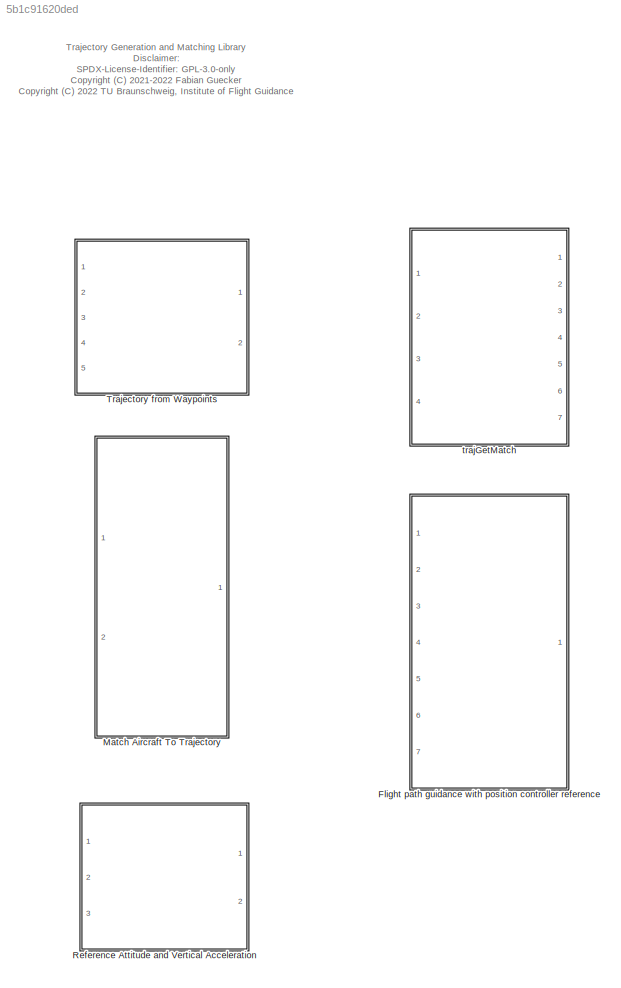
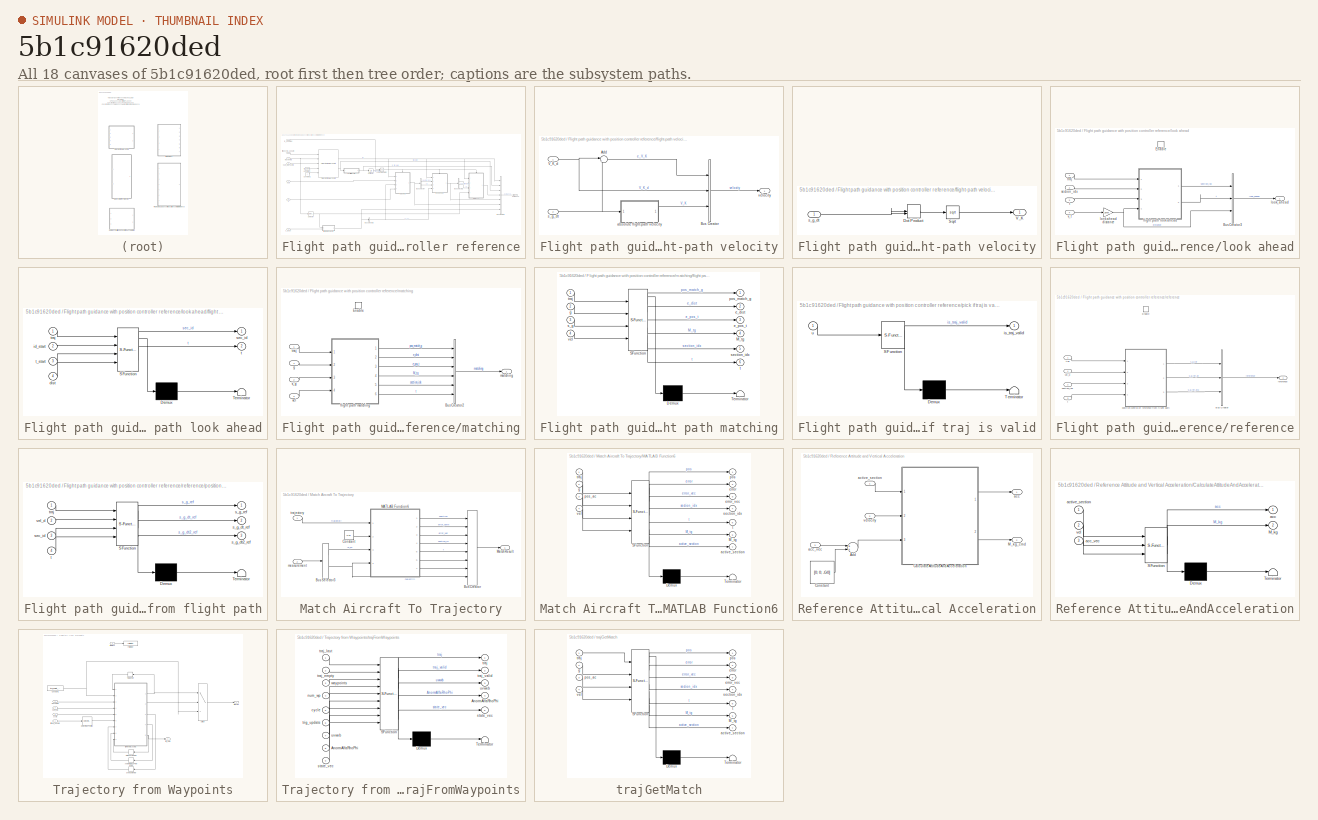
[diagram: thumbnail index - all 18 canvases of the model, root first then tree order]
MODEL slx_5b1c91620ded
KIND library
CONFIG AbsTol = auto
CONFIG EnableMultiTasking = off
CONFIG FixedStep = auto
CONFIG MaxStep = auto
CONFIG MinStep = auto
CONFIG RelTol = 1e-3
CONFIG SampleTimeConstraint = Unconstrained
CONFIG Solver = VariableStepAuto
CONFIG SolverName = VariableStepAuto
CONFIG StartTime = 0.0
CONFIG StopTime = 10.0
BLOCK [SubSystem] Flight path guidance with position controller reference
  Ports = [7, 1]
  RequestExecContextInheritance = off
BLOCK [BusCreator] Flight path guidance with position controller reference/Bus Creator1
  DisplayOption = bar
  InheritFromInputs = on
  Inputs = 7
  Ports = [7, 1]
BLOCK [BusSelector] Flight path guidance with position controller reference/Bus Selector
  OutputAsBus = off
  OutputSignals = section_idx,t
  Ports = [1, 2]
BLOCK [BusSelector] Flight path guidance with position controller reference/Bus Selector1
  OutputAsBus = off
  OutputSignals = section_idx,t
  Ports = [1, 2]
BLOCK [BusSelector] Flight path guidance with position controller reference/Bus Selector2
  OutputAsBus = off
  OutputSignals = V_K
  Ports = [1, 1]
BLOCK [Constant] Flight path guidance with position controller reference/Constant
  Value = traj_params.cycle
BLOCK [Constant] Flight path guidance with position controller reference/Constant1
BLOCK [Logic] Flight path guidance with position controller reference/Logical Operator
  AllPortsSameDT = off
  OutDataTypeStr = boolean
  Ports = [2, 1]
BLOCK [Selector] Flight path guidance with position controller reference/Selector
  IndexOptions = Index vector (dialog),Index vector (dialog)
  Indices = 4,1
  InputPortWidth = 3
  NumberOfDimensions = 2
  OutputSizes = 1,1
  Ports = [1, 1]
BLOCK [Reference] Flight path guidance with position controller reference/Trajectory from Waypoints  REF=$bdroot/Trajectory from Waypoints
  Ports = [5, 2]
  SourceBlock = $bdroot/Trajectory from Waypoints
BLOCK [UnitDelay] Flight path guidance with position controller reference/Unit Delay
  InputProcessing = Elements as channels (sample based)
  SampleTime = -1
BLOCK [SubSystem] Flight path guidance with position controller reference/flight-path velocity
  Ports = [2, 1]
  RequestExecContextInheritance = off
BLOCK [Sum] Flight path guidance with position controller reference/flight-path velocity/Add
  IconShape = round
  InputSameDT = off
  Inputs = |+-
  OutDataTypeStr = Inherit: Inherit via internal rule
  Ports = [2, 1]
  SaturateOnIntegerOverflow = off
BLOCK [BusCreator] Flight path guidance with position controller reference/flight-path velocity/Bus Creator
  DisplayOption = bar
  InheritFromInputs = on
  Inputs = 3
  Ports = [3, 1]
BLOCK [Inport] Flight path guidance with position controller reference/flight-path velocity/V_K_d
  IconDisplay = Port number
BLOCK [SubSystem] Flight path guidance with position controller reference/flight-path velocity/absolute flight-path velocity
  Ports = [1, 1]
  RequestExecContextInheritance = off
BLOCK [DotProduct] Flight path guidance with position controller reference/flight-path velocity/absolute flight-path velocity/Dot Product
  OutDataTypeStr = Inherit: Inherit via internal rule
BLOCK [Sqrt] Flight path guidance with position controller reference/flight-path velocity/absolute flight-path velocity/Sqrt
BLOCK [Outport] Flight path guidance with position controller reference/flight-path velocity/absolute flight-path velocity/V_K
  IconDisplay = Port number
BLOCK [Inport] Flight path guidance with position controller reference/flight-path velocity/absolute flight-path velocity/s_g_dt
  IconDisplay = Port number
BLOCK [Inport] Flight path guidance with position controller reference/flight-path velocity/s_g_dt
  IconDisplay = Port number
  Port = 2
BLOCK [Outport] Flight path guidance with position controller reference/flight-path velocity/velocity
  IconDisplay = Port number
BLOCK [Inport] Flight path guidance with position controller reference/g
  IconDisplay = Port number
  Port = 6
BLOCK [Outport] Flight path guidance with position controller reference/guidance
  IconDisplay = Port number
BLOCK [Inport] Flight path guidance with position controller reference/is_enabled
  IconDisplay = Port number
  Port = 7
BLOCK [SubSystem] Flight path guidance with position controller reference/look ahead
  Ports = [4, 1, 1]
  RequestExecContextInheritance = off
BLOCK [BusCreator] Flight path guidance with position controller reference/look ahead/Bus Creator3
  DisplayOption = bar
  InheritFromInputs = on
  Inputs = 3
  Ports = [3, 1]
BLOCK [EnablePort] Flight path guidance with position controller reference/look ahead/Enable
  Ports = []
BLOCK [SubSystem] Flight path guidance with position controller reference/look ahead/flight path look ahead
  ErrorFcn = Stateflow.Translate.translate
  PermitHierarchicalResolution = ExplicitOnly
  Ports = [4, 2]
  RequestExecContextInheritance = off
  SFBlockType = MATLAB Function
  TreatAsAtomicUnit = on
BLOCK [Demux] Flight path guidance with position controller reference/look ahead/flight path look ahead/ Demux 
  Outputs = 1
  Ports = [1, 1]
BLOCK [S-Function] Flight path guidance with position controller reference/look ahead/flight path look ahead/ SFunction 
  EnableBusSupport = off
  FunctionName = sf_sfun
  PortCounts = [4 3]
  Ports = [4, 3]
  SFcnIsStateOwnerBlock = off
  SFunctionDeploymentMode = off
  Tag = Stateflow S-Function traj_lib 7
BLOCK [Terminator] Flight path guidance with position controller reference/look ahead/flight path look ahead/ Terminator 
BLOCK [Inport] Flight path guidance with position controller reference/look ahead/flight path look ahead/dist
  IconDisplay = Port number
  Port = 4
BLOCK [Inport] Flight path guidance with position controller reference/look ahead/flight path look ahead/id_start
  IconDisplay = Port number
  Port = 2
BLOCK [Outport] Flight path guidance with position controller reference/look ahead/flight path look ahead/sec_id
  IconDisplay = Port number
BLOCK [Outport] Flight path guidance with position controller reference/look ahead/flight path look ahead/t
  IconDisplay = Port number
  Port = 2
BLOCK [Inport] Flight path guidance with position controller reference/look ahead/flight path look ahead/t_start
  IconDisplay = Port number
  Port = 3
BLOCK [Inport] Flight path guidance with position controller reference/look ahead/flight path look ahead/traj
  IconDisplay = Port number
BLOCK [Gain] Flight path guidance with position controller reference/look ahead/look ahead distance
  Gain = T_inner_loop
  OutDataTypeStr = Inherit: Inherit via internal rule
  ParamDataTypeStr = Inherit: Inherit via internal rule
  SaturateOnIntegerOverflow = off
BLOCK [Outport] Flight path guidance with position controller reference/look ahead/look_ahead
  IconDisplay = Port number
BLOCK [Inport] Flight path guidance with position controller reference/look ahead/section_idx
  IconDisplay = Port number
  Port = 2
BLOCK [Inport] Flight path guidance with position controller reference/look ahead/t
  IconDisplay = Port number
  Port = 3
BLOCK [Inport] Flight path guidance with position controller reference/look ahead/traj
  IconDisplay = Port number
BLOCK [Inport] Flight path guidance with position controller reference/look ahead/v_t
  IconDisplay = Port number
  Port = 4
BLOCK [SubSystem] Flight path guidance with position controller reference/matching
  Ports = [4, 1, 1]
  RequestExecContextInheritance = off
BLOCK [BusCreator] Flight path guidance with position controller reference/matching/Bus Creator2
  DisplayOption = bar
  InheritFromInputs = on
  Inputs = 6
  Ports = [6, 1]
BLOCK [EnablePort] Flight path guidance with position controller reference/matching/Enable
  Ports = []
BLOCK [SubSystem] Flight path guidance with position controller reference/matching/flight path matching
  ErrorFcn = Stateflow.Translate.translate
  PermitHierarchicalResolution = ExplicitOnly
  Ports = [4, 6]
  RequestExecContextInheritance = off
  SFBlockType = MATLAB Function
  TreatAsAtomicUnit = on
BLOCK [Demux] Flight path guidance with position controller reference/matching/flight path matching/ Demux 
  Outputs = 1
  Ports = [1, 1]
BLOCK [S-Function] Flight path guidance with position controller reference/matching/flight path matching/ SFunction 
  EnableBusSupport = off
  FunctionName = sf_sfun
  PortCounts = [4 7]
  Ports = [4, 7]
  SFcnIsStateOwnerBlock = off
  SFunctionDeploymentMode = off
  Tag = Stateflow S-Function traj_lib 4
BLOCK [Terminator] Flight path guidance with position controller reference/matching/flight path matching/ Terminator 
BLOCK [Outport] Flight path guidance with position controller reference/matching/flight path matching/M_tg
  IconDisplay = Port number
  Port = 4
BLOCK [Outport] Flight path guidance with position controller reference/matching/flight path matching/e_dist
  IconDisplay = Port number
  Port = 2
BLOCK [Outport] Flight path guidance with position controller reference/matching/flight path matching/e_pos_t
  IconDisplay = Port number
  Port = 3
BLOCK [Inport] Flight path guidance with position controller reference/matching/flight path matching/g
  IconDisplay = Port number
  Port = 2
BLOCK [Outport] Flight path guidance with position controller reference/matching/flight path matching/pos_match_g
  IconDisplay = Port number
BLOCK [Inport] Flight path guidance with position controller reference/matching/flight path matching/s_g
  IconDisplay = Port number
  Port = 3
BLOCK [Outport] Flight path guidance with position controller reference/matching/flight path matching/section_idx
  IconDisplay = Port number
  Port = 5
BLOCK [Outport] Flight path guidance with position controller reference/matching/flight path matching/t
  IconDisplay = Port number
  Port = 6
BLOCK [Inport] Flight path guidance with position controller reference/matching/flight path matching/traj
  IconDisplay = Port number
BLOCK [Inport] Flight path guidance with position controller reference/matching/flight path matching/vel
  IconDisplay = Port number
  Port = 4
BLOCK [Inport] Flight path guidance with position controller reference/matching/g
  IconDisplay = Port number
  Port = 4
BLOCK [Outport] Flight path guidance with position controller reference/matching/matching
  IconDisplay = Port number
BLOCK [Inport] Flight path guidance with position controller reference/matching/s_g
  IconDisplay = Port number
  Port = 2
BLOCK [Inport] Flight path guidance with position controller reference/matching/traj
  IconDisplay = Port number
BLOCK [Inport] Flight path guidance with position controller reference/matching/vel
  IconDisplay = Port number
  Port = 3
BLOCK [Inport] Flight path guidance with position controller reference/num_waypoints
  IconDisplay = Port number
  Port = 2
BLOCK [SubSystem] Flight path guidance with position controller reference/pick if traj is valid
  ErrorFcn = Stateflow.Translate.translate
  PermitHierarchicalResolution = ExplicitOnly
  Ports = [1, 1]
  RequestExecContextInheritance = off
  SFBlockType = MATLAB Function
  TreatAsAtomicUnit = on
BLOCK [Demux] Flight path guidance with position controller reference/pick if traj is valid/ Demux 
  Outputs = 1
  Ports = [1, 1]
BLOCK [S-Function] Flight path guidance with position controller reference/pick if traj is valid/ SFunction 
  EnableBusSupport = off
  FunctionName = sf_sfun
  PortCounts = [1 2]
  Ports = [1, 2]
  SFcnIsStateOwnerBlock = off
  SFunctionDeploymentMode = off
  Tag = Stateflow S-Function traj_lib 3
BLOCK [Terminator] Flight path guidance with position controller reference/pick if traj is valid/ Terminator 
BLOCK [Outport] Flight path guidance with position controller reference/pick if traj is valid/is_traj_valid
  IconDisplay = Port number
BLOCK [Inport] Flight path guidance with position controller reference/pick if traj is valid/u
  IconDisplay = Port number
BLOCK [SubSystem] Flight path guidance with position controller reference/reference
  Ports = [4, 1, 1]
  RequestExecContextInheritance = off
BLOCK [BusCreator] Flight path guidance with position controller reference/reference/Bus Creator
  DisplayOption = bar
  InheritFromInputs = on
  Inputs = 3
  Ports = [3, 1]
BLOCK [EnablePort] Flight path guidance with position controller reference/reference/Enable
  Ports = []
BLOCK [SubSystem] Flight path guidance with position controller reference/reference/position controller reference from flight path
  ErrorFcn = Stateflow.Translate.translate
  PermitHierarchicalResolution = ExplicitOnly
  Ports = [4, 3]
  RequestExecContextInheritance = off
  SFBlockType = MATLAB Function
  TreatAsAtomicUnit = on
BLOCK [Demux] Flight path guidance with position controller reference/reference/position controller reference from flight path/ Demux 
  Outputs = 1
  Ports = [1, 1]
BLOCK [S-Function] Flight path guidance with position controller reference/reference/position controller reference from flight path/ SFunction 
  EnableBusSupport = off
  FunctionName = sf_sfun
  PortCounts = [4 4]
  Ports = [4, 4]
  SFcnIsStateOwnerBlock = off
  SFunctionDeploymentMode = off
  Tag = Stateflow S-Function traj_lib 5
BLOCK [Terminator] Flight path guidance with position controller reference/reference/position controller reference from flight path/ Terminator 
BLOCK [Outport] Flight path guidance with position controller reference/reference/position controller reference from flight path/s_g_dt2_ref
  IconDisplay = Port number
  Port = 3
BLOCK [Outport] Flight path guidance with position controller reference/reference/position controller reference from flight path/s_g_dt_ref
  IconDisplay = Port number
  Port = 2
BLOCK [Outport] Flight path guidance with position controller reference/reference/position controller reference from flight path/s_g_ref
  IconDisplay = Port number
BLOCK [Inport] Flight path guidance with position controller reference/reference/position controller reference from flight path/sec_id
  IconDisplay = Port number
  Port = 3
BLOCK [Inport] Flight path guidance with position controller reference/reference/position controller reference from flight path/t
  IconDisplay = Port number
  Port = 4
BLOCK [Inport] Flight path guidance with position controller reference/reference/position controller reference from flight path/traj
  IconDisplay = Port number
BLOCK [Inport] Flight path guidance with position controller reference/reference/position controller reference from flight path/vel_d
  IconDisplay = Port number
  Port = 2
BLOCK [Outport] Flight path guidance with position controller reference/reference/reference
  IconDisplay = Port number
BLOCK [Inport] Flight path guidance with position controller reference/reference/section_idx
  IconDisplay = Port number
  Port = 2
BLOCK [Inport] Flight path guidance with position controller reference/reference/t
  IconDisplay = Port number
  Port = 3
BLOCK [Inport] Flight path guidance with position controller reference/reference/traj
  IconDisplay = Port number
BLOCK [Inport] Flight path guidance with position controller reference/reference/vel_d
  IconDisplay = Port number
  Port = 4
BLOCK [Inport] Flight path guidance with position controller reference/s_g
  IconDisplay = Port number
  Port = 4
BLOCK [Inport] Flight path guidance with position controller reference/s_g_dt
  IconDisplay = Port number
  Port = 5
BLOCK [Inport] Flight path guidance with position controller reference/trigger_wp_update
  IconDisplay = Port number
  Port = 3
BLOCK [Inport] Flight path guidance with position controller reference/waypoints
  IconDisplay = Port number
BLOCK [SubSystem] Match Aircraft To Trajectory
  Ports = [2, 1]
  RequestExecContextInheritance = off
BLOCK [BusCreator] Match Aircraft To Trajectory/Bus Creator
  DisplayOption = bar
  InheritFromInputs = on
  Inputs = 8
  Ports = [8, 1]
BLOCK [BusSelector] Match Aircraft To Trajectory/Bus Selector3
  OutputAsBus = off
  OutputSignals = EKF.s_g,EKF.velocity
  Ports = [1, 2]
BLOCK [Constant] Match Aircraft To Trajectory/Constant
  Value = 9.81
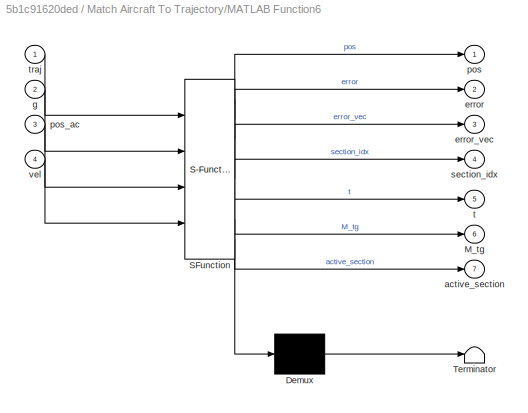
BLOCK [SubSystem] Match Aircraft To Trajectory/MATLAB Function6
  ErrorFcn = Stateflow.Translate.translate
  PermitHierarchicalResolution = ExplicitOnly
  Ports = [4, 7]
  RequestExecContextInheritance = off
  SFBlockType = MATLAB Function
  TreatAsAtomicUnit = on
BLOCK [Demux] Match Aircraft To Trajectory/MATLAB Function6/ Demux 
  Outputs = 1
  Ports = [1, 1]
BLOCK [S-Function] Match Aircraft To Trajectory/MATLAB Function6/ SFunction 
  EnableBusSupport = on
  FunctionName = sf_sfun
  PortCounts = [4 8]
  Ports = [4, 8]
  SFcnIsStateOwnerBlock = off
  SFunctionDeploymentMode = off
  Tag = Stateflow S-Function traj_lib 2
BLOCK [Terminator] Match Aircraft To Trajectory/MATLAB Function6/ Terminator 
BLOCK [Outport] Match Aircraft To Trajectory/MATLAB Function6/M_tg
  IconDisplay = Port number
  Port = 6
BLOCK [Outport] Match Aircraft To Trajectory/MATLAB Function6/active_section
  IconDisplay = Port number
  Port = 7
BLOCK [Outport] Match Aircraft To Trajectory/MATLAB Function6/error
  IconDisplay = Port number
  Port = 2
BLOCK [Outport] Match Aircraft To Trajectory/MATLAB Function6/error_vec
  IconDisplay = Port number
  Port = 3
BLOCK [Inport] Match Aircraft To Trajectory/MATLAB Function6/g
  IconDisplay = Port number
  Port = 2
BLOCK [Outport] Match Aircraft To Trajectory/MATLAB Function6/pos
  IconDisplay = Port number
BLOCK [Inport] Match Aircraft To Trajectory/MATLAB Function6/pos_ac
  IconDisplay = Port number
  Port = 3
BLOCK [Outport] Match Aircraft To Trajectory/MATLAB Function6/section_idx
  IconDisplay = Port number
  Port = 4
BLOCK [Outport] Match Aircraft To Trajectory/MATLAB Function6/t
  IconDisplay = Port number
  Port = 5
BLOCK [Inport] Match Aircraft To Trajectory/MATLAB Function6/traj
  IconDisplay = Port number
BLOCK [Inport] Match Aircraft To Trajectory/MATLAB Function6/vel
  IconDisplay = Port number
  Port = 4
BLOCK [Outport] Match Aircraft To Trajectory/MatchResult
  IconDisplay = Port number
BLOCK [Inport] Match Aircraft To Trajectory/measurement
  IconDisplay = Port number
  Port = 2
BLOCK [Inport] Match Aircraft To Trajectory/trajectory
  IconDisplay = Port number
BLOCK [SubSystem] Reference Attitude and Vertical Acceleration
  Ports = [3, 2]
  RequestExecContextInheritance = off
BLOCK [Sum] Reference Attitude and Vertical Acceleration/Add
  InputSameDT = off
  OutDataTypeStr = Inherit: Inherit via internal rule
  Ports = [2, 1]
  SaturateOnIntegerOverflow = off
BLOCK [SubSystem] Reference Attitude and Vertical Acceleration/CalculateAttitudeAndAcceleration
  ErrorFcn = Stateflow.Translate.translate
  PermitHierarchicalResolution = ExplicitOnly
  Ports = [3, 2]
  RequestExecContextInheritance = off
  SFBlockType = MATLAB Function
  TreatAsAtomicUnit = on
BLOCK [Demux] Reference Attitude and Vertical Acceleration/CalculateAttitudeAndAcceleration/ Demux 
  Outputs = 1
  Ports = [1, 1]
BLOCK [S-Function] Reference Attitude and Vertical Acceleration/CalculateAttitudeAndAcceleration/ SFunction 
  EnableBusSupport = on
  FunctionName = sf_sfun
  PortCounts = [3 3]
  Ports = [3, 3]
  SFcnIsStateOwnerBlock = off
  SFunctionDeploymentMode = off
  Tag = Stateflow S-Function traj_lib 9
BLOCK [Terminator] Reference Attitude and Vertical Acceleration/CalculateAttitudeAndAcceleration/ Terminator 
BLOCK [Outport] Reference Attitude and Vertical Acceleration/CalculateAttitudeAndAcceleration/M_kg
  IconDisplay = Port number
  Port = 2
BLOCK [Outport] Reference Attitude and Vertical Acceleration/CalculateAttitudeAndAcceleration/acc
  IconDisplay = Port number
BLOCK [Inport] Reference Attitude and Vertical Acceleration/CalculateAttitudeAndAcceleration/acc_vec
  IconDisplay = Port number
  Port = 3
BLOCK [Inport] Reference Attitude and Vertical Acceleration/CalculateAttitudeAndAcceleration/active_section
  IconDisplay = Port number
BLOCK [Inport] Reference Attitude and Vertical Acceleration/CalculateAttitudeAndAcceleration/vel
  IconDisplay = Port number
  Port = 2
BLOCK [Constant] Reference Attitude and Vertical Acceleration/Constant
  Value = [0; 0; -G0]
  VectorParams1D = off
BLOCK [Outport] Reference Attitude and Vertical Acceleration/M_kg_cmd
  IconDisplay = Port number
  Port = 2
BLOCK [Outport] Reference Attitude and Vertical Acceleration/acc
  IconDisplay = Port number
BLOCK [Inport] Reference Attitude and Vertical Acceleration/acc_vec
  IconDisplay = Port number
  Port = 3
BLOCK [Inport] Reference Attitude and Vertical Acceleration/active_section
  IconDisplay = Port number
BLOCK [Inport] Reference Attitude and Vertical Acceleration/velocity
  IconDisplay = Port number
  Port = 2
BLOCK [SubSystem] Trajectory from Waypoints
  Ports = [5, 2]
  RequestExecContextInheritance = off
BLOCK [Memory] Trajectory from Waypoints/AnormAlfaRhoPhiMemory
  InheritSampleTime = on
  InitialCondition = zeros(4,1)
BLOCK [Constant] Trajectory from Waypoints/Constant1
  OutDataTypeStr = Bus: trajectoryStructBus
  Value = traj_empty_struct
BLOCK [Reference] Trajectory from Waypoints/Detect Rise Positive  REF=simulink/Logic and Bit
Operations/Detect Rise
Positive
  Ports = [1, 1]
  SourceBlock = simulink/Logic and Bit\nOperations/Detect Rise\nPositive
  SourceProductBaseCode = SL
  SourceProductName = Simulink
  SourceType = Detect Rise Positive
BLOCK [ForIterator] Trajectory from Waypoints/For Iterator
  IterationLimit = 100
  IterationSource = external
  Ports = [1]
  ShowIterationPort = off
BLOCK [Inport] Trajectory from Waypoints/Iterations
  IconDisplay = Port number
  OutMax = [100]
  OutMin = [1]
  Port = 5
  PortDimensions = 1
BLOCK [Memory] Trajectory from Waypoints/StateVecMemory 
  InheritSampleTime = on
  InitialCondition = zeros(6,1)
BLOCK [Switch] Trajectory from Waypoints/Switch
  InputSameDT = off
  SaturateOnIntegerOverflow = off
  Threshold = 1
BLOCK [Memory] Trajectory from Waypoints/TrajMemory
  InheritSampleTime = on
  InitialCondition = traj_empty_struct
BLOCK [Inport] Trajectory from Waypoints/cycle
  IconDisplay = Port number
  Port = 4
BLOCK [Inport] Trajectory from Waypoints/num_wp
  IconDisplay = Port number
  Port = 3
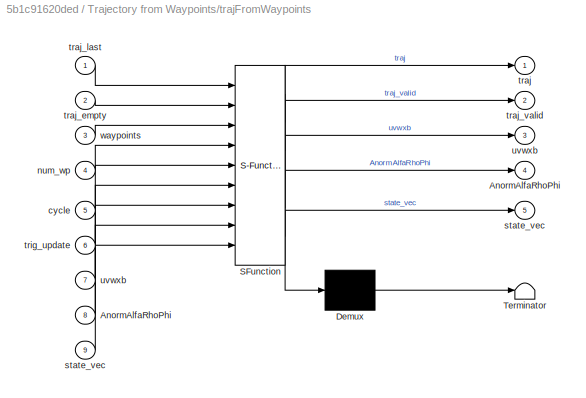
BLOCK [SubSystem] Trajectory from Waypoints/trajFromWaypoints
  ErrorFcn = Stateflow.Translate.translate
  PermitHierarchicalResolution = ExplicitOnly
  Ports = [9, 5]
  RequestExecContextInheritance = off
  SFBlockType = MATLAB Function
  TreatAsAtomicUnit = on
BLOCK [Demux] Trajectory from Waypoints/trajFromWaypoints/ Demux 
  Outputs = 1
  Ports = [1, 1]
BLOCK [S-Function] Trajectory from Waypoints/trajFromWaypoints/ SFunction 
  EnableBusSupport = on
  FunctionName = sf_sfun
  Parameters = traj_empty_struct
  PortCounts = [9 6]
  Ports = [9, 6]
  SFcnIsStateOwnerBlock = off
  SFunctionDeploymentMode = off
  Tag = Stateflow S-Function traj_lib 26
BLOCK [Terminator] Trajectory from Waypoints/trajFromWaypoints/ Terminator 
BLOCK [Outport] Trajectory from Waypoints/trajFromWaypoints/AnormAlfaRhoPhi
  IconDisplay = Port number
  Port = 4
BLOCK [Inport] Trajectory from Waypoints/trajFromWaypoints/AnormAlfaRhoPhi 
  IconDisplay = Port number
  Port = 8
BLOCK [Inport] Trajectory from Waypoints/trajFromWaypoints/cycle
  IconDisplay = Port number
  Port = 5
BLOCK [Inport] Trajectory from Waypoints/trajFromWaypoints/num_wp
  IconDisplay = Port number
  Port = 4
BLOCK [Outport] Trajectory from Waypoints/trajFromWaypoints/state_vec
  IconDisplay = Port number
  Port = 5
BLOCK [Inport] Trajectory from Waypoints/trajFromWaypoints/state_vec 
  IconDisplay = Port number
  Port = 9
BLOCK [Outport] Trajectory from Waypoints/trajFromWaypoints/traj
  IconDisplay = Port number
BLOCK [Inport] Trajectory from Waypoints/trajFromWaypoints/traj_empty
  IconDisplay = Port number
  Port = 2
BLOCK [Inport] Trajectory from Waypoints/trajFromWaypoints/traj_last
  IconDisplay = Port number
BLOCK [Outport] Trajectory from Waypoints/trajFromWaypoints/traj_valid
  IconDisplay = Port number
  Port = 2
BLOCK [Inport] Trajectory from Waypoints/trajFromWaypoints/trig_update
  IconDisplay = Port number
  Port = 6
BLOCK [Outport] Trajectory from Waypoints/trajFromWaypoints/uvwxb
  IconDisplay = Port number
  Port = 3
BLOCK [Inport] Trajectory from Waypoints/trajFromWaypoints/uvwxb 
  IconDisplay = Port number
  Port = 7
BLOCK [Inport] Trajectory from Waypoints/trajFromWaypoints/waypoints
  IconDisplay = Port number
  Port = 3
BLOCK [Outport] Trajectory from Waypoints/traj_state
  IconDisplay = Port number
  Port = 2
BLOCK [Outport] Trajectory from Waypoints/trajectory
  IconDisplay = Port number
BLOCK [Inport] Trajectory from Waypoints/trigger_update
  IconDisplay = Port number
BLOCK [Memory] Trajectory from Waypoints/uvwxbMemory
  InheritSampleTime = on
  InitialCondition = zeros(traj_parameter.wpmax*(traj_parameter.degree+1),5)
BLOCK [Inport] Trajectory from Waypoints/waypoints
  IconDisplay = Port number
  Port = 2
BLOCK [SubSystem] trajGetMatch
  ErrorFcn = Stateflow.Translate.translate
  PermitHierarchicalResolution = ExplicitOnly
  Ports = [4, 7]
  RequestExecContextInheritance = off
  SFBlockType = MATLAB Function
  TreatAsAtomicUnit = on
BLOCK [Demux] trajGetMatch/ Demux 
  Outputs = 1
  Ports = [1, 1]
BLOCK [S-Function] trajGetMatch/ SFunction 
  EnableBusSupport = off
  FunctionName = sf_sfun
  PortCounts = [4 8]
  Ports = [4, 8]
  SFcnIsStateOwnerBlock = off
  SFunctionDeploymentMode = off
  Tag = Stateflow S-Function traj_lib 1
BLOCK [Terminator] trajGetMatch/ Terminator 
BLOCK [Outport] trajGetMatch/M_tg
  IconDisplay = Port number
  Port = 6
BLOCK [Outport] trajGetMatch/active_section
  IconDisplay = Port number
  Port = 7
BLOCK [Outport] trajGetMatch/error
  IconDisplay = Port number
  Port = 2
BLOCK [Outport] trajGetMatch/error_vec
  IconDisplay = Port number
  Port = 3
BLOCK [Inport] trajGetMatch/g
  IconDisplay = Port number
  Port = 2
BLOCK [Outport] trajGetMatch/pos
  IconDisplay = Port number
BLOCK [Inport] trajGetMatch/pos_ac
  IconDisplay = Port number
  Port = 3
BLOCK [Outport] trajGetMatch/section_idx
  IconDisplay = Port number
  Port = 4
BLOCK [Outport] trajGetMatch/t
  IconDisplay = Port number
  Port = 5
BLOCK [Inport] trajGetMatch/traj
  IconDisplay = Port number
BLOCK [Inport] trajGetMatch/vel
  IconDisplay = Port number
  Port = 4
ANNOTATION (root): Trajectory Generation and Matching Library Disclaimer: SPDX-License-Identifier: GPL-3.0-only <copyright redacted>
LINE Match Aircraft To Trajectory/Bus Creator:1 -> Match Aircraft To Trajectory/MatchResult:1
LINE Match Aircraft To Trajectory/Bus Selector3:1 -> Match Aircraft To Trajectory/MATLAB Function6:3
NET Match Aircraft To Trajectory/Bus Selector3:2 -> Match Aircraft To Trajectory/Bus Creator:8, Match Aircraft To Trajectory/MATLAB Function6:4
LINE Match Aircraft To Trajectory/Constant:1 -> Match Aircraft To Trajectory/MATLAB Function6:2
LINE Match Aircraft To Trajectory/MATLAB Function6:1 -> Match Aircraft To Trajectory/Bus Creator:1
LINE Match Aircraft To Trajectory/MATLAB Function6:2 -> Match Aircraft To Trajectory/Bus Creator:2
LINE Match Aircraft To Trajectory/MATLAB Function6:3 -> Match Aircraft To Trajectory/Bus Creator:3
LINE Match Aircraft To Trajectory/MATLAB Function6:4 -> Match Aircraft To Trajectory/Bus Creator:4
LINE Match Aircraft To Trajectory/MATLAB Function6:5 -> Match Aircraft To Trajectory/Bus Creator:5
LINE Match Aircraft To Trajectory/MATLAB Function6:6 -> Match Aircraft To Trajectory/Bus Creator:6
LINE Match Aircraft To Trajectory/MATLAB Function6:7 -> Match Aircraft To Trajectory/Bus Creator:7
LINE Match Aircraft To Trajectory/measurement:1 -> Match Aircraft To Trajectory/Bus Selector3:1
LINE Match Aircraft To Trajectory/trajectory:1 -> Match Aircraft To Trajectory/MATLAB Function6:1
LINE Reference Attitude and Vertical Acceleration/Add:1 -> Reference Attitude and Vertical Acceleration/CalculateAttitudeAndAcceleration:3
LINE Reference Attitude and Vertical Acceleration/CalculateAttitudeAndAcceleration:1 -> Reference Attitude and Vertical Acceleration/acc:1
LINE Reference Attitude and Vertical Acceleration/CalculateAttitudeAndAcceleration:2 -> Reference Attitude and Vertical Acceleration/M_kg_cmd:1
LINE Reference Attitude and Vertical Acceleration/Constant:1 -> Reference Attitude and Vertical Acceleration/Add:2
LINE Reference Attitude and Vertical Acceleration/acc_vec:1 -> Reference Attitude and Vertical Acceleration/Add:1
LINE Reference Attitude and Vertical Acceleration/active_section:1 -> Reference Attitude and Vertical Acceleration/CalculateAttitudeAndAcceleration:1
LINE Reference Attitude and Vertical Acceleration/velocity:1 -> Reference Attitude and Vertical Acceleration/CalculateAttitudeAndAcceleration:2
LINE Trajectory from Waypoints/AnormAlfaRhoPhiMemory:1 -> Trajectory from Waypoints/trajFromWaypoints:8
NET Trajectory from Waypoints/Constant1:1 -> Trajectory from Waypoints/Switch:3, Trajectory from Waypoints/trajFromWaypoints:2
LINE Trajectory from Waypoints/Detect Rise Positive:1 -> Trajectory from Waypoints/trajFromWaypoints:6
LINE Trajectory from Waypoints/Iterations:1 -> Trajectory from Waypoints/For Iterator:1
LINE Trajectory from Waypoints/StateVecMemory :1 -> Trajectory from Waypoints/trajFromWaypoints:9
LINE Trajectory from Waypoints/Switch:1 -> Trajectory from Waypoints/trajectory:1
LINE Trajectory from Waypoints/TrajMemory:1 -> Trajectory from Waypoints/trajFromWaypoints:1
LINE Trajectory from Waypoints/cycle:1 -> Trajectory from Waypoints/trajFromWaypoints:5
LINE Trajectory from Waypoints/num_wp:1 -> Trajectory from Waypoints/trajFromWaypoints:4
NET Trajectory from Waypoints/trajFromWaypoints:1 -> Trajectory from Waypoints/Switch:1, Trajectory from Waypoints/TrajMemory:1
LINE Trajectory from Waypoints/trajFromWaypoints:2 -> Trajectory from Waypoints/Switch:2
LINE Trajectory from Waypoints/trajFromWaypoints:3 -> Trajectory from Waypoints/uvwxbMemory:1
LINE Trajectory from Waypoints/trajFromWaypoints:4 -> Trajectory from Waypoints/AnormAlfaRhoPhiMemory:1
NET Trajectory from Waypoints/trajFromWaypoints:5 -> Trajectory from Waypoints/StateVecMemory :1, Trajectory from Waypoints/traj_state:1
LINE Trajectory from Waypoints/trigger_update:1 -> Trajectory from Waypoints/Detect Rise Positive:1
LINE Trajectory from Waypoints/uvwxbMemory:1 -> Trajectory from Waypoints/trajFromWaypoints:7
LINE Trajectory from Waypoints/waypoints:1 -> Trajectory from Waypoints/trajFromWaypoints:3
note: NET lines group one-source signal fan-out (src -> all destinations, sorted); 1:1 wires keep LINE
CHART trajGetMatch states=1 transitions=1
  STATE_LABEL 'eML_blk_kernel()'
  STATE_LABEL 'SCRIPT:\nfunction [pos, error, error_vec, section_idx, t, M_tg, active_section]  = GetMatch(traj, g, pos_ac, vel)\n\n    section_idx = ones(1,superiorfloat(pos_ac));\n\n    [section_idx, error, t] = trajGetMatchEnhanced(traj, pos_ac, section_idx);\n    \n    active_section   = trajGetSection(traj, section_idx);\n    active_section.t = t;\n    \n    pos = trajSectionGetPos(active_section);\n         \n    erro...<+141ch>'
CHART Match Aircraft To Trajectory/MATLAB Function6 states=1 transitions=1
  STATE_LABEL 'eML_blk_kernel()'
  STATE_LABEL 'SCRIPT:\nfunction [pos, error, error_vec, section_idx, t, M_tg, active_section]  = GetMatch(traj, g, pos_ac, vel)\n\n    section_idx = 1;\n\n    [section_idx, error, t] = trajGetMatch(traj, pos_ac, section_idx);\n    \n    active_section   = trajGetSection(traj, section_idx);\n    active_section.t = t;\n    \n    pos = trajSectionGetPos(active_section);\n         \n    error_vec = (pos - pos_ac);  \n\n    [T, B...<+105ch>'
CHART Flight path guidance
with position controller reference/pick if traj is valid states=1 transitions=1
  STATE_LABEL 'eML_blk_kernel()'
  STATE_LABEL 'SCRIPT:\nfunction is_traj_valid = fcn(u)\nis_traj_valid = u(5);\nend'
CHART Flight path guidance
with position controller reference/matching/flight path matching states=1 transitions=1
  STATE_LABEL 'eML_blk_kernel()'
  STATE_LABEL "SCRIPT:\nfunction [pos_match_g, e_dist, e_pos_t, M_tg, section_idx, t]  = fcn(traj, g, s_g, vel)\n\n    [section_idx, e_dist, t] = trajGetMatchEnhanced(traj, s_g);\n    \n    traj_section   = trajGetSection(traj, section_idx);\n    \n    pos_match_g = trajSectionGetPos(traj_section,t);\n    \n    [T, B, N, ~, ~] = trajSectionGetFrenetSerretWithGravity(traj_section, vel, g, t);\n    M_tg = [T, B, -N]';\n     ...<+57ch>"
CHART Flight path guidance
with position controller reference/reference/position controller reference from flight path states=1 transitions=1
  STATE_LABEL 'eML_blk_kernel()'
  STATE_LABEL 'SCRIPT:\nfunction [s_g_ref,s_g_dt_ref,s_g_dt2_ref] = fcn(traj, vel_d, sec_id, t)\ntraj_section = trajGetSection(traj,sec_id);\ns_g_ref = trajSectionGetPos(traj_section,t);\ns_g_dt_ref = trajSectionGetVel(traj_section,vel_d,t);\ns_g_dt2_ref = trajSectionGetAcc(traj_section,vel_d,0, t);\nend'
CHART Flight path guidance
with position controller reference/look ahead/flight path look ahead states=1 transitions=1
  STATE_LABEL 'eML_blk_kernel()'
  STATE_LABEL 'SCRIPT:\nfunction [sec_id,t] = trajSweepAlong(traj,id_start,t_start,dist)\n[sec_id, t] = trajSweepAlong(traj,id_start,t_start,dist);\nend\n'
CHART Reference Attitude and Vertical Acceleration/CalculateAttitudeAndAcceleration states=1 transitions=1
  STATE_LABEL 'eML_blk_kernel()'
  STATE_LABEL 'SCRIPT:\nfunction [acc, M_kg] = CalculateAttitudeAndAcceleration(active_section, vel, acc_vec)\n\n[T, B, N, kappa, ~] = trajSectionGetFrenetSerretWithAcceleration(active_section, vel, acc_vec);\n\n% Calculate path acceleration\nacc = (kappa * N) * vel^2;\n\nM_kg = [T, B, -N];\n\nend\n\n\n\n\n\n\n'
CHART Trajectory from Waypoints/trajFromWaypoints states=1 transitions=1
  STATE_LABEL 'eML_blk_kernel()'
  STATE_LABEL 'SCRIPT:\nfunction [traj, traj_valid, uvwxb, AnormAlfaRhoPhi, state_vec] = ...\n    trajFromWaypointsIterative(traj_last,traj_empty,waypoints,num_wp, ...\n    cycle,trig_update,uvwxb,AnormAlfaRhoPhi,state_vec,traj_empty_struct)\n\n[traj, traj_valid, uvwxb, AnormAlfaRhoPhi, state_vec] = ...\n    trajFromWaypointsIterative(traj_last,traj_empty,waypoints,num_wp, ...\n    cycle,trig_update,uvwxb,AnormAlfaRhoP...<+40ch>'
